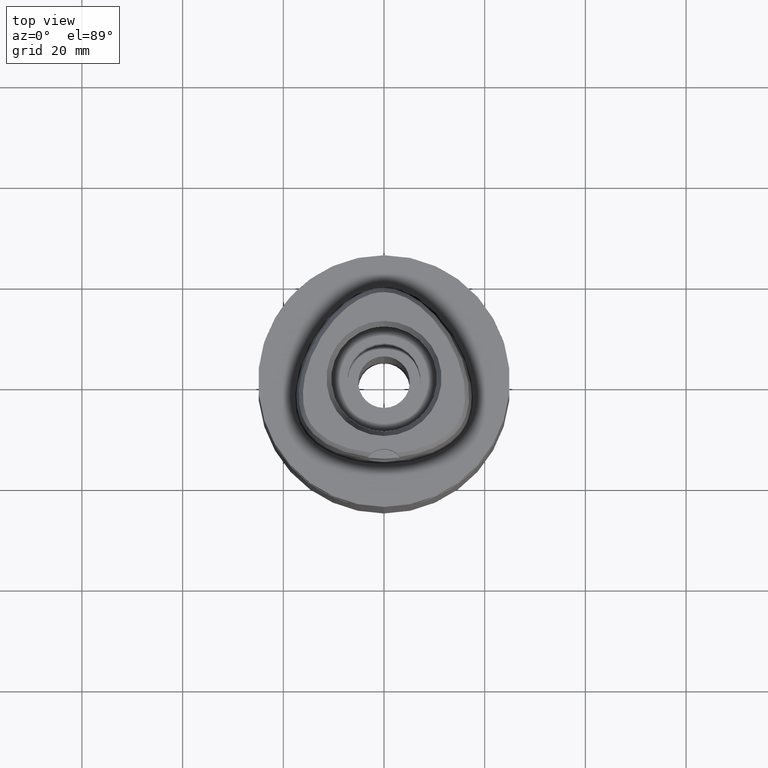
[diagram: clean part render]
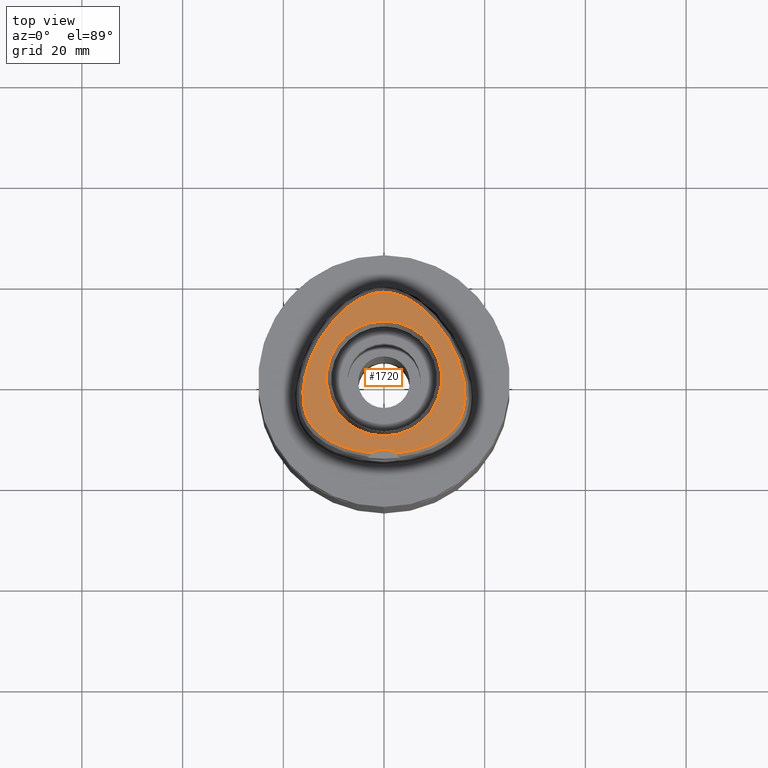
[diagram: same view with one face highlighted and labeled with its STEP entity id]
A machine part, top view. The second image highlights one B-rep face of the part: STEP entity #1720.
In plain terms, the highlighted planar face has unit normal (0, 0, 1).
Its self-contained STEP definition (entity closure, byte-faithful):
#17=CARTESIAN_POINT('',(0.E0,-1.8E1,3.E1));
#18=DIRECTION('',(0.E0,0.E0,1.E0));
#19=DIRECTION('',(6.016359810411E-1,7.987703964950E-1,0.E0));
#20=AXIS2_PLACEMENT_3D('',#17,#18,#19);
#26=CARTESIAN_POINT('',(-2.406542353495E0,-1.480491723099E1,3.E1));
#27=CARTESIAN_POINT('',(-3.119962389775E0,-1.474031917254E1,3.E1));
#28=CARTESIAN_POINT('',(-4.472538993886E0,-1.456015084510E1,3.E1));
#29=CARTESIAN_POINT('',(-6.320291175636E0,-1.415988803527E1,3.E1));
#30=CARTESIAN_POINT('',(-7.874175014651E0,-1.369271905295E1,3.E1));
#31=CARTESIAN_POINT('',(-9.242590882019E0,-1.316641235536E1,3.E1));
#32=CARTESIAN_POINT('',(-1.047640893667E1,-1.257519479891E1,3.E1));
#33=CARTESIAN_POINT('',(-1.159196825124E1,-1.191717847203E1,3.E1));
#34=CARTESIAN_POINT('',(-1.256688101867E1,-1.121043855799E1,3.E1));
#35=CARTESIAN_POINT('',(-1.337822903116E1,-1.048991565010E1,3.E1));
#36=CARTESIAN_POINT('',(-1.404966965633E1,-9.759428284633E0,3.E1));
#37=CARTESIAN_POINT('',(-1.459773547252E1,-9.021808898831E0,3.E1));
#38=CARTESIAN_POINT('',(-1.504162805209E1,-8.269272961169E0,3.E1));
#39=CARTESIAN_POINT('',(-1.541646109258E1,-7.444995615450E0,3.E1));
#40=CARTESIAN_POINT('',(-1.572627985194E1,-6.517046905223E0,3.E1));
#41=CARTESIAN_POINT('',(-1.595896211798E1,-5.479444294328E0,3.E1));
#42=CARTESIAN_POINT('',(-1.610279041947E1,-4.298809584087E0,3.E1));
#43=CARTESIAN_POINT('',(-1.613482614092E1,-3.010674749629E0,3.E1));
#44=CARTESIAN_POINT('',(-1.605042052546E1,-1.664038557644E0,3.E1));
#45=CARTESIAN_POINT('',(-1.584472587757E1,-2.322850905293E-1,3.E1));
#46=CARTESIAN_POINT('',(-1.549815933548E1,1.325930568586E0,3.E1));
#47=CARTESIAN_POINT('',(-1.495893681636E1,3.092327763963E0,3.E1));
#48=CARTESIAN_POINT('',(-1.419682502366E1,5.008425759223E0,3.E1));
#49=CARTESIAN_POINT('',(-1.325038832504E1,6.918237381996E0,3.E1));
#50=CARTESIAN_POINT('',(-1.214696932628E1,8.758973589906E0,3.E1));
#51=CARTESIAN_POINT('',(-1.092250874875E1,1.047373473602E1,3.E1));
#52=CARTESIAN_POINT('',(-9.634753245334E0,1.199543103393E1,3.E1));
#53=CARTESIAN_POINT('',(-8.412869591046E0,1.322278856650E1,3.E1));
#54=CARTESIAN_POINT('',(-7.266600232939E0,1.421267712936E1,3.E1));
#55=CARTESIAN_POINT('',(-6.129784003185E0,1.505023293083E1,3.E1));
#56=CARTESIAN_POINT('',(-4.997790236599E0,1.574627173150E1,3.E1));
#57=CARTESIAN_POINT('',(-3.884687934815E0,1.629880158106E1,3.E1));
#58=CARTESIAN_POINT('',(-2.823361445685E0,1.670249384334E1,3.E1));
#59=CARTESIAN_POINT('',(-1.831695609022E0,1.696931811858E1,3.E1));
#60=CARTESIAN_POINT('',(-8.970873643901E-1,1.712064924221E1,3.E1));
#61=CARTESIAN_POINT('',(-2.946269115393E-1,1.715328888648E1,3.E1));
#62=CARTESIAN_POINT('',(-6.301949014321E-11,1.715328888648E1,3.E1));
#67=CARTESIAN_POINT('',(-6.301949014321E-11,1.715328888648E1,3.E1));
#68=CARTESIAN_POINT('',(2.939943132504E-1,1.715328888649E1,3.E1));
#69=CARTESIAN_POINT('',(8.956514460542E-1,1.712080858468E1,3.E1));
#70=CARTESIAN_POINT('',(1.831225829011E0,1.696947984262E1,3.E1));
#71=CARTESIAN_POINT('',(2.823678328549E0,1.670233923577E1,3.E1));
#72=CARTESIAN_POINT('',(3.881912009912E0,1.629990401530E1,3.E1));
#73=CARTESIAN_POINT('',(4.994060758125E0,1.574839748420E1,3.E1));
#74=CARTESIAN_POINT('',(6.129020245611E0,1.505089115772E1,3.E1));
#75=CARTESIAN_POINT('',(7.268546427004E0,1.421118831229E1,3.E1));
#76=CARTESIAN_POINT('',(8.413889097372E0,1.322164567106E1,3.E1));
#77=CARTESIAN_POINT('',(9.631975194227E0,1.199845263111E1,3.E1));
#78=CARTESIAN_POINT('',(1.092223968328E1,1.047413157612E1,3.E1));
#79=CARTESIAN_POINT('',(1.214481919353E1,8.762103330019E0,3.E1));
#80=CARTESIAN_POINT('',(1.324818434491E1,6.922230753883E0,3.E1));
#81=CARTESIAN_POINT('',(1.419426543005E1,5.014068610653E0,3.E1));
#82=CARTESIAN_POINT('',(1.495792506383E1,3.095864356189E0,3.E1));
#83=CARTESIAN_POINT('',(1.549975720256E1,1.320321786072E0,3.E1));
#84=CARTESIAN_POINT('',(1.584538995722E1,-2.361021613980E-1,3.E1));
#85=CARTESIAN_POINT('',(1.605110672618E1,-1.669898263124E0,3.E1));
#86=CARTESIAN_POINT('',(1.613498296573E1,-3.017652294682E0,3.E1));
#87=CARTESIAN_POINT('',(1.610226785932E1,-4.304771408078E0,3.E1));
#88=CARTESIAN_POINT('',(1.595857701997E1,-5.481061392472E0,3.E1));
#89=CARTESIAN_POINT('',(1.572606017231E1,-6.518032583976E0,3.E1));
#90=CARTESIAN_POINT('',(1.541552750484E1,-7.447403500816E0,3.E1));
#91=CARTESIAN_POINT('',(1.504090071883E1,-8.270625802075E0,3.E1));
#92=CARTESIAN_POINT('',(1.459688288436E1,-9.023033770788E0,3.E1));
#93=CARTESIAN_POINT('',(1.404939298265E1,-9.759808139509E0,3.E1));
#94=CARTESIAN_POINT('',(1.337705165559E1,-1.049094880709E1,3.E1));
#95=CARTESIAN_POINT('',(1.256913568837E1,-1.120859831043E1,3.E1));
#96=CARTESIAN_POINT('',(1.159094066438E1,-1.191805892507E1,3.E1));
#97=CARTESIAN_POINT('',(1.047325860654E1,-1.257678046354E1,3.E1));
#98=CARTESIAN_POINT('',(9.243609692593E0,-1.316589125565E1,3.E1));
#99=CARTESIAN_POINT('',(7.874918151506E0,-1.369250109714E1,3.E1));
#100=CARTESIAN_POINT('',(6.320487035364E0,-1.415985875689E1,3.E1));
#101=CARTESIAN_POINT('',(4.471881614150E0,-1.456027076877E1,3.E1));
#102=CARTESIAN_POINT('',(3.119650281511E0,-1.474034301438E1,3.E1));
#103=CARTESIAN_POINT('',(2.406543924165E0,-1.480491841402E1,3.E1));
#108=CARTESIAN_POINT('',(0.E0,1.570609519906E-14,3.E1));
#109=DIRECTION('',(0.E0,0.E0,1.E0));
#110=DIRECTION('',(0.E0,1.E0,0.E0));
#111=AXIS2_PLACEMENT_3D('',#108,#109,#110);
#116=CARTESIAN_POINT('',(0.E0,1.570609519906E-14,3.E1));
#117=DIRECTION('',(0.E0,0.E0,1.E0));
#118=DIRECTION('',(0.E0,-1.E0,0.E0));
#119=AXIS2_PLACEMENT_3D('',#116,#117,#118);
#1522=CARTESIAN_POINT('',(2.406543924164E0,-1.480491841402E1,3.E1));
#1523=CARTESIAN_POINT('',(-2.406542353497E0,-1.480491723099E1,3.E1));
#1524=VERTEX_POINT('',#1522);
#1525=VERTEX_POINT('',#1523);
#1526=VERTEX_POINT('',#62);
#1527=CARTESIAN_POINT('',(0.E0,1.143782217350E1,3.E1));
#1528=CARTESIAN_POINT('',(0.E0,-1.143782217350E1,3.E1));
#1529=VERTEX_POINT('',#1527);
#1530=VERTEX_POINT('',#1528);
#1701=CARTESIAN_POINT('',(0.E0,0.E0,3.E1));
#1702=DIRECTION('',(0.E0,0.E0,1.E0));
#1703=DIRECTION('',(0.E0,1.E0,0.E0));
#1704=AXIS2_PLACEMENT_3D('',#1701,#1702,#1703);
#1705=PLANE('',#1704);
#1707=ORIENTED_EDGE('',*,*,#1706,.T.);
#1709=ORIENTED_EDGE('',*,*,#1708,.T.);
#1711=ORIENTED_EDGE('',*,*,#1710,.T.);
#1712=EDGE_LOOP('',(#1707,#1709,#1711));
#1713=FACE_OUTER_BOUND('',#1712,.F.);
#1715=ORIENTED_EDGE('',*,*,#1714,.T.);
#1717=ORIENTED_EDGE('',*,*,#1716,.T.);
#1718=EDGE_LOOP('',(#1715,#1717));
#1719=FACE_BOUND('',#1718,.F.);
#21=CIRCLE('',#20,4.E0);
#63=B_SPLINE_CURVE_WITH_KNOTS('',3,(#26,#27,#28,#29,#30,#31,#32,#33,#34,#35,#36,
#37,#38,#39,#40,#41,#42,#43,#44,#45,#46,#47,#48,#49,#50,#51,#52,#53,#54,#55,#56,
#57,#58,#59,#60,#61,#62),.UNSPECIFIED.,.F.,.F.,(4,1,1,1,1,1,1,1,1,1,1,1,1,1,1,1,
1,1,1,1,1,1,1,1,1,1,1,1,1,1,1,1,1,1,4),(0.E0,2.941176470588E-2,
5.882352941176E-2,8.823529411765E-2,1.176470588235E-1,1.470588235294E-1,
1.764705882353E-1,2.058823529412E-1,2.352941176471E-1,2.647058823529E-1,
2.941176470588E-1,3.235294117647E-1,3.529411764706E-1,3.823529411765E-1,
4.117647058824E-1,4.411764705882E-1,4.705882352941E-1,5.E-1,5.294117647059E-1,
5.588235294118E-1,5.882352941176E-1,6.176470588235E-1,6.470588235294E-1,
6.764705882353E-1,7.058823529412E-1,7.352941176471E-1,7.647058823529E-1,
7.941176470588E-1,8.235294117647E-1,8.529411764706E-1,8.823529411765E-1,
9.117647058824E-1,9.411764705882E-1,9.705882352941E-1,1.E0),.UNSPECIFIED.);
#104=B_SPLINE_CURVE_WITH_KNOTS('',3,(#67,#68,#69,#70,#71,#72,#73,#74,#75,#76,
#77,#78,#79,#80,#81,#82,#83,#84,#85,#86,#87,#88,#89,#90,#91,#92,#93,#94,#95,#96,
#97,#98,#99,#100,#101,#102,#103),.UNSPECIFIED.,.F.,.F.,(4,1,1,1,1,1,1,1,1,1,1,1,
1,1,1,1,1,1,1,1,1,1,1,1,1,1,1,1,1,1,1,1,1,1,4),(0.E0,2.941176470588E-2,
5.882352941176E-2,8.823529411765E-2,1.176470588235E-1,1.470588235294E-1,
1.764705882353E-1,2.058823529412E-1,2.352941176471E-1,2.647058823529E-1,
2.941176470588E-1,3.235294117647E-1,3.529411764706E-1,3.823529411765E-1,
4.117647058824E-1,4.411764705882E-1,4.705882352941E-1,5.E-1,5.294117647059E-1,
5.588235294118E-1,5.882352941176E-1,6.176470588235E-1,6.470588235294E-1,
6.764705882353E-1,7.058823529412E-1,7.352941176471E-1,7.647058823529E-1,
7.941176470588E-1,8.235294117647E-1,8.529411764706E-1,8.823529411765E-1,
9.117647058824E-1,9.411764705882E-1,9.705882352941E-1,1.E0),.UNSPECIFIED.);
#112=CIRCLE('',#111,1.143782217350E1);
#120=CIRCLE('',#119,1.143782217350E1);
#1706=EDGE_CURVE('',#1524,#1525,#21,.T.);
#1708=EDGE_CURVE('',#1525,#1526,#63,.T.);
#1710=EDGE_CURVE('',#1526,#1524,#104,.T.);
#1714=EDGE_CURVE('',#1529,#1530,#112,.T.);
#1716=EDGE_CURVE('',#1530,#1529,#120,.T.);
#1720=ADVANCED_FACE('',(#1713,#1719),#1705,.T.);